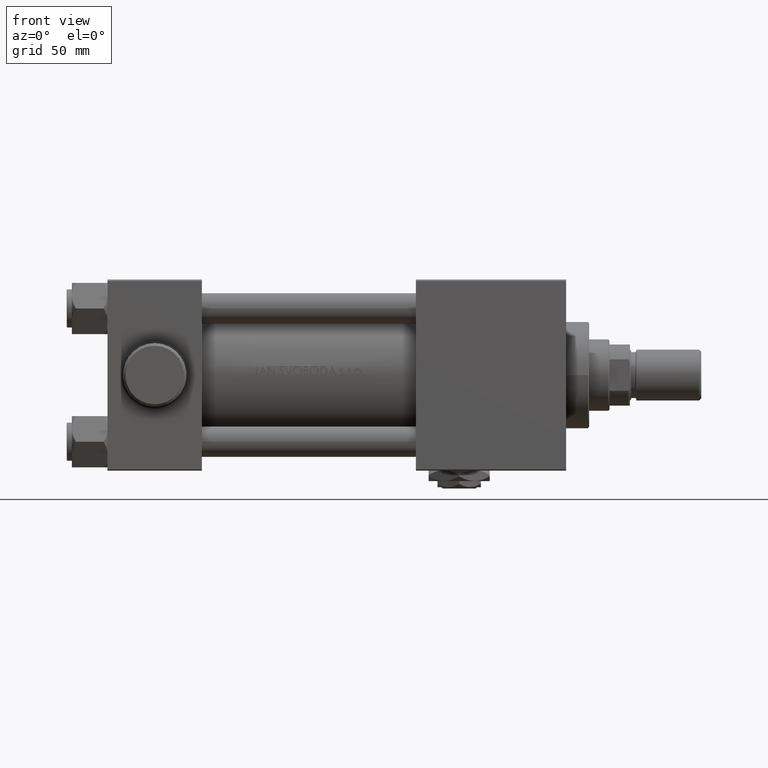
[diagram: clean part render]
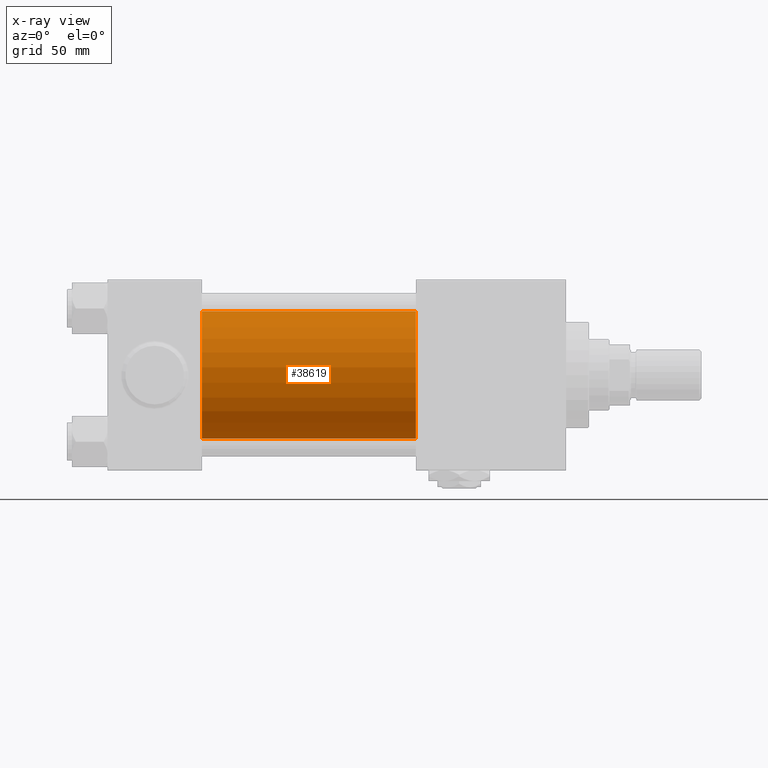
[diagram: x-ray — body ghosted, one internal face saturated and labeled with its STEP entity id]
A machine part, front view, then the same camera in x-ray: the body is ghosted and one INTERNAL B-rep face — a face not visible from any outside direction — is saturated and labeled: STEP entity #38619.
In plain terms, the highlighted cylindrical surface (partial cylindrical patch) has radius 25 mm, axis along (-1, -0, -0).
Its self-contained STEP definition (entity closure, byte-faithful):
#2353 = VECTOR ( 'NONE', #37090, 1000.000000000000000 ) ;
#2538 = CARTESIAN_POINT ( 'NONE',  ( 121.0000000000000000, -4.078299540852317872E-16, -25.00000000000000000 ) ) ;
#2880 = CARTESIAN_POINT ( 'NONE',  ( 121.0000000000000000, -4.078299540852317872E-16, -25.00000000000000000 ) ) ;
#5704 = DIRECTION ( 'NONE',  ( 1.000000000000000000, 0.000000000000000000, 0.000000000000000000 ) ) ;
#9220 = EDGE_LOOP ( 'NONE', ( #23713, #12964, #17740, #33403 ) ) ;
#10214 = AXIS2_PLACEMENT_3D ( 'NONE', #15084, #22976, #41569 ) ;
#11352 = FACE_OUTER_BOUND ( 'NONE', #9220, .T. ) ;
#11639 = CARTESIAN_POINT ( 'NONE',  ( 121.0000000000000000, -3.469446951953614189E-15, 25.00000000000000000 ) ) ;
#12407 = DIRECTION ( 'NONE',  ( 0.000000000000000000, 0.000000000000000000, -1.000000000000000000 ) ) ;
#12964 = ORIENTED_EDGE ( 'NONE', *, *, #36470, .T. ) ;
#14356 = CARTESIAN_POINT ( 'NONE',  ( 37.00000000000000000, -3.469446951953614189E-15, 25.00000000000000000 ) ) ;
#14586 = CARTESIAN_POINT ( 'NONE',  ( 121.0000000000000000, -3.469446951953614189E-15, 25.00000000000000000 ) ) ;
#14858 = CARTESIAN_POINT ( 'NONE',  ( 37.00000000000000000, -3.469446951953614189E-15, 0.000000000000000000 ) ) ;
#15084 = CARTESIAN_POINT ( 'NONE',  ( 121.0000000000000000, -3.469446951953614189E-15, 0.000000000000000000 ) ) ;
#17644 = DIRECTION ( 'NONE',  ( -1.000000000000000000, -0.000000000000000000, -0.000000000000000000 ) ) ;
#17740 = ORIENTED_EDGE ( 'NONE', *, *, #36859, .F. ) ;
#18066 = DIRECTION ( 'NONE',  ( 1.000000000000000000, 0.000000000000000000, 0.000000000000000000 ) ) ;
#18373 = EDGE_CURVE ( 'NONE', #27036, #23633, #44544, .T. ) ;
#18802 = DIRECTION ( 'NONE',  ( 0.000000000000000000, 0.000000000000000000, -1.000000000000000000 ) ) ;
#22787 = VECTOR ( 'NONE', #17644, 1000.000000000000000 ) ;
#22976 = DIRECTION ( 'NONE',  ( -1.000000000000000000, -0.000000000000000000, -0.000000000000000000 ) ) ;
#23633 = VERTEX_POINT ( 'NONE', #14356 ) ;
#23713 = ORIENTED_EDGE ( 'NONE', *, *, #38385, .T. ) ;
#27036 = VERTEX_POINT ( 'NONE', #11639 ) ;
#29975 = AXIS2_PLACEMENT_3D ( 'NONE', #32181, #5704, #12407 ) ;
#32181 = CARTESIAN_POINT ( 'NONE',  ( 121.0000000000000000, -3.469446951953614189E-15, 0.000000000000000000 ) ) ;
#33403 = ORIENTED_EDGE ( 'NONE', *, *, #18373, .F. ) ;
#35515 = CIRCLE ( 'NONE', #29975, 25.00000000000000000 ) ;
#36224 = AXIS2_PLACEMENT_3D ( 'NONE', #14858, #18066, #18802 ) ;
#36452 = LINE ( 'NONE', #2538, #22787 ) ;
#36470 = EDGE_CURVE ( 'NONE', #43016, #40464, #36452, .T. ) ;
#36859 = EDGE_CURVE ( 'NONE', #23633, #40464, #47323, .T. ) ;
#37090 = DIRECTION ( 'NONE',  ( -1.000000000000000000, -0.000000000000000000, -0.000000000000000000 ) ) ;
#38101 = CARTESIAN_POINT ( 'NONE',  ( 37.00000000000000000, -4.078299540852317872E-16, -25.00000000000000000 ) ) ;
#38385 = EDGE_CURVE ( 'NONE', #27036, #43016, #35515, .T. ) ;
#38619 = ADVANCED_FACE ( 'NONE', ( #11352 ), #46028, .F. ) ;
#40464 = VERTEX_POINT ( 'NONE', #38101 ) ;
#41569 = DIRECTION ( 'NONE',  ( 0.000000000000000000, 0.000000000000000000, 1.000000000000000000 ) ) ;
#43016 = VERTEX_POINT ( 'NONE', #2880 ) ;
#44544 = LINE ( 'NONE', #14586, #2353 ) ;
#46028 = CYLINDRICAL_SURFACE ( 'NONE', #10214, 25.00000000000000000 ) ;
#47323 = CIRCLE ( 'NONE', #36224, 25.00000000000000000 ) ;